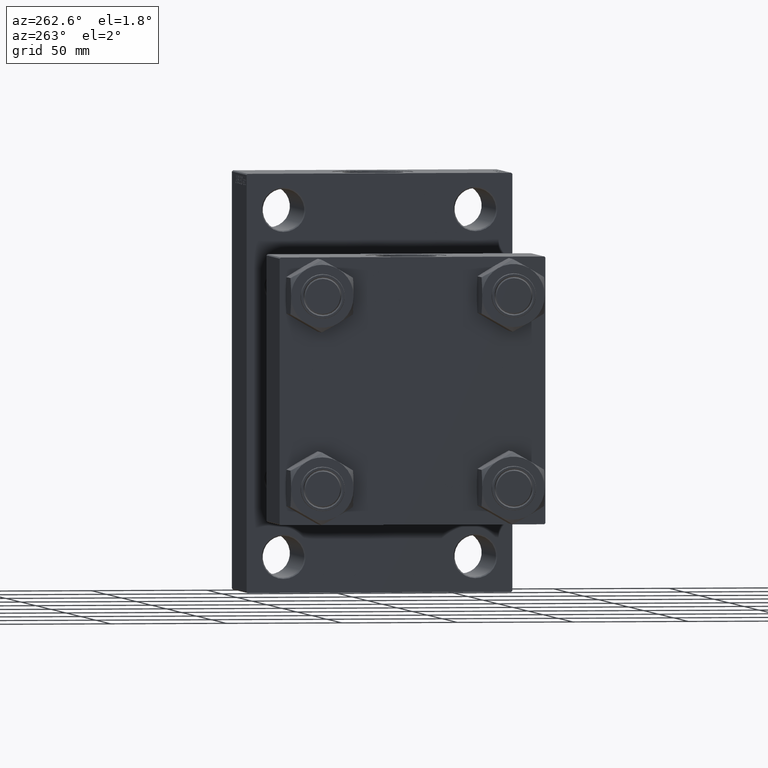
[diagram: clean part render]
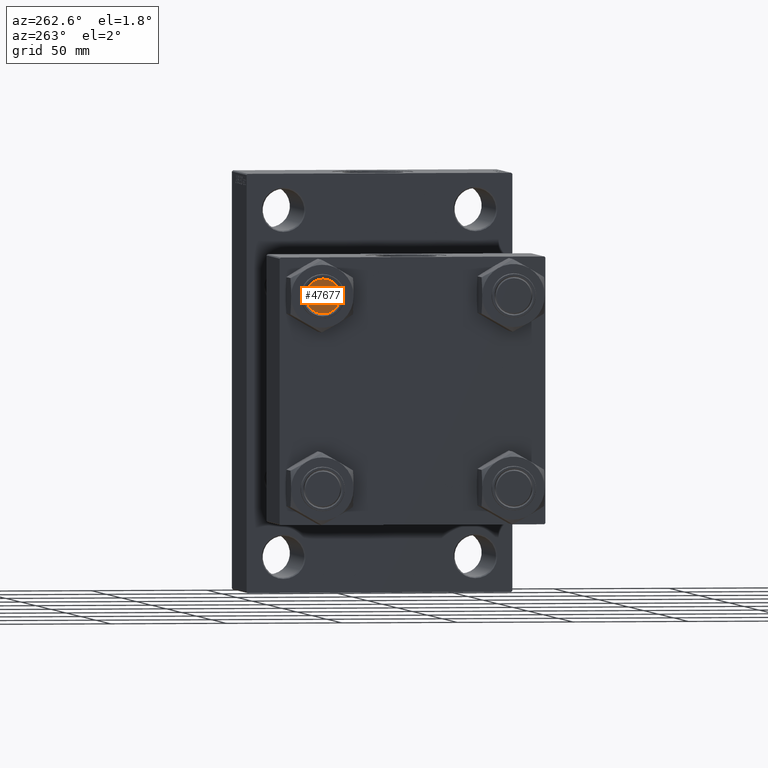
[diagram: same view with one face highlighted and labeled with its STEP entity id]
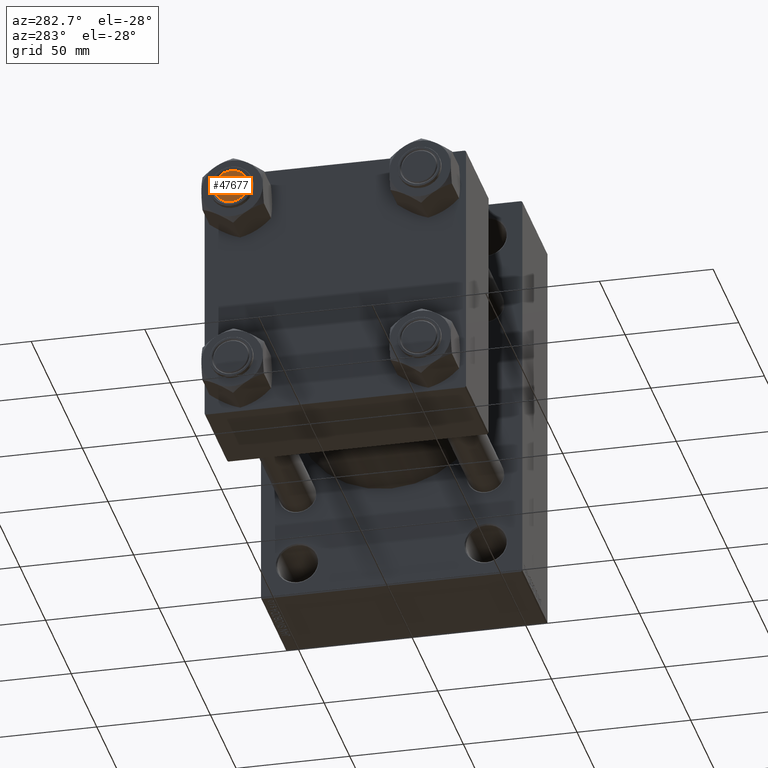
[diagram: same view with one face highlighted and labeled with its STEP entity id]
A machine part, auxiliary view. The second image highlights one B-rep face of the part: STEP entity #47677.
A second angle (auxiliary view) of the same face is appended — the face is thin or edge-on in the first view.
In plain terms, the highlighted planar face has unit normal (-1, 0, 0).
Its self-contained STEP definition (entity closure, byte-faithful):
#604 = EDGE_LOOP ( 'NONE', ( #25995, #46509 ) ) ;
#1281 = DIRECTION ( 'NONE',  ( 0.000000000000000000, 0.000000000000000000, 1.000000000000000000 ) ) ;
#1763 = PLANE ( 'NONE',  #20844 ) ;
#3881 = DIRECTION ( 'NONE',  ( 0.000000000000000000, 0.000000000000000000, 1.000000000000000000 ) ) ;
#7750 = AXIS2_PLACEMENT_3D ( 'NONE', #14725, #29424, #12302 ) ;
#7889 = EDGE_CURVE ( 'NONE', #30377, #34732, #11029, .T. ) ;
#7922 = AXIS2_PLACEMENT_3D ( 'NONE', #36933, #3881, #46811 ) ;
#8507 = CARTESIAN_POINT ( 'NONE',  ( 0.000000000000000000, 0.000000000000000000, 143.0000000000000000 ) ) ;
#11029 = CIRCLE ( 'NONE', #7922, 7.499999999999978684 ) ;
#12302 = DIRECTION ( 'NONE',  ( 1.000000000000000000, 0.000000000000000000, 0.000000000000000000 ) ) ;
#12831 = FACE_OUTER_BOUND ( 'NONE', #604, .T. ) ;
#14725 = CARTESIAN_POINT ( 'NONE',  ( 0.000000000000000000, 0.000000000000000000, 143.0000000000000000 ) ) ;
#20844 = AXIS2_PLACEMENT_3D ( 'NONE', #8507, #1281, #42020 ) ;
#22718 = CARTESIAN_POINT ( 'NONE',  ( -7.499999999999978684, 0.000000000000000000, 143.0000000000000000 ) ) ;
#24479 = CARTESIAN_POINT ( 'NONE',  ( 7.499999999999978684, 9.491012693391973982E-16, 143.0000000000000000 ) ) ;
#25995 = ORIENTED_EDGE ( 'NONE', *, *, #46661, .T. ) ;
#28532 = CIRCLE ( 'NONE', #7750, 7.499999999999978684 ) ;
#29424 = DIRECTION ( 'NONE',  ( 0.000000000000000000, 0.000000000000000000, 1.000000000000000000 ) ) ;
#30377 = VERTEX_POINT ( 'NONE', #24479 ) ;
#34732 = VERTEX_POINT ( 'NONE', #22718 ) ;
#36933 = CARTESIAN_POINT ( 'NONE',  ( 0.000000000000000000, 0.000000000000000000, 143.0000000000000000 ) ) ;
#42020 = DIRECTION ( 'NONE',  ( 1.000000000000000000, 0.000000000000000000, -0.000000000000000000 ) ) ;
#46509 = ORIENTED_EDGE ( 'NONE', *, *, #7889, .T. ) ;
#46661 = EDGE_CURVE ( 'NONE', #34732, #30377, #28532, .T. ) ;
#46811 = DIRECTION ( 'NONE',  ( 1.000000000000000000, 0.000000000000000000, 0.000000000000000000 ) ) ;
#47677 = ADVANCED_FACE ( 'NONE', ( #12831 ), #1763, .T. ) ;